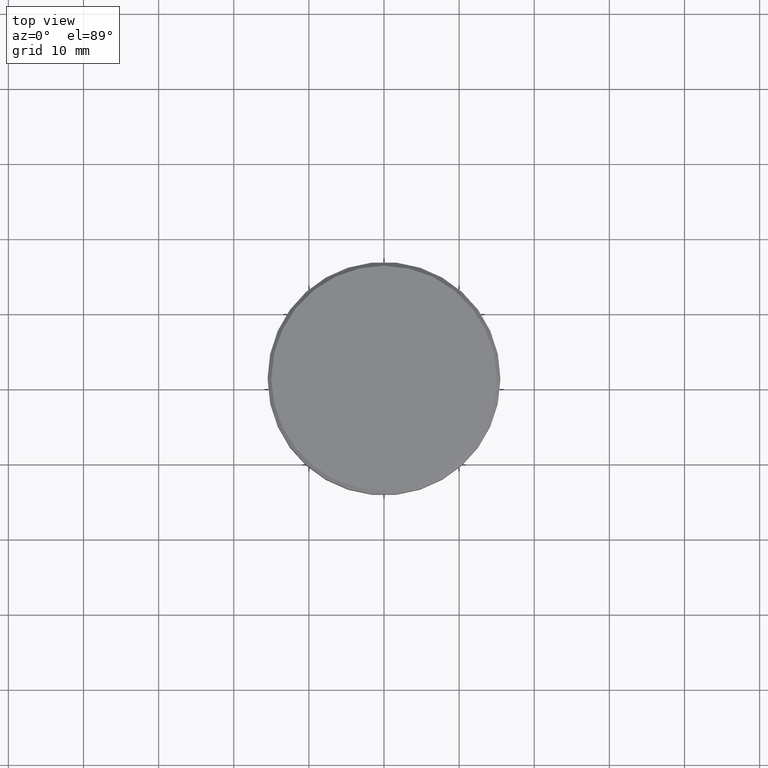
[diagram: clean part render]
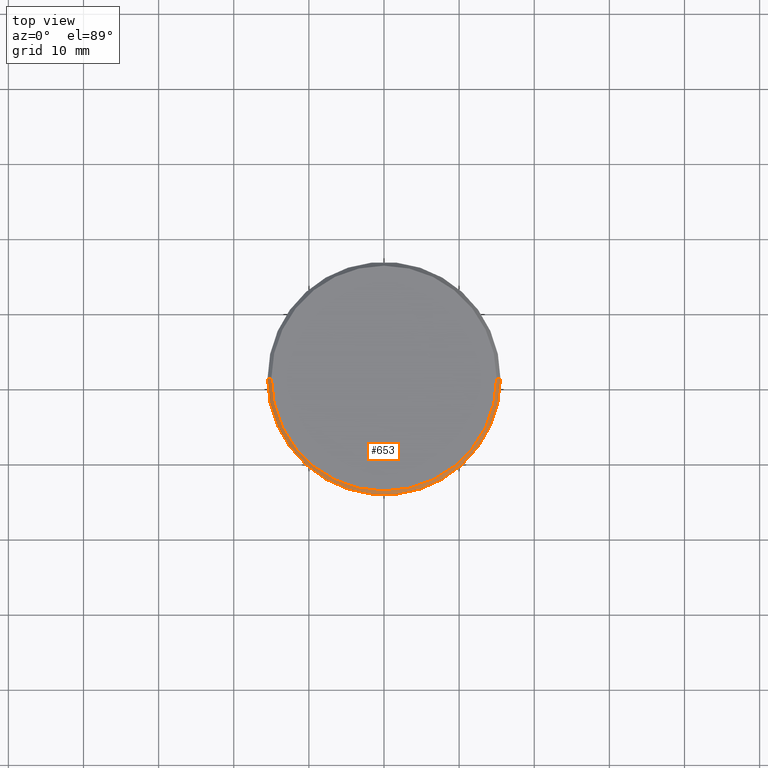
[diagram: same view with one face highlighted and labeled with its STEP entity id]
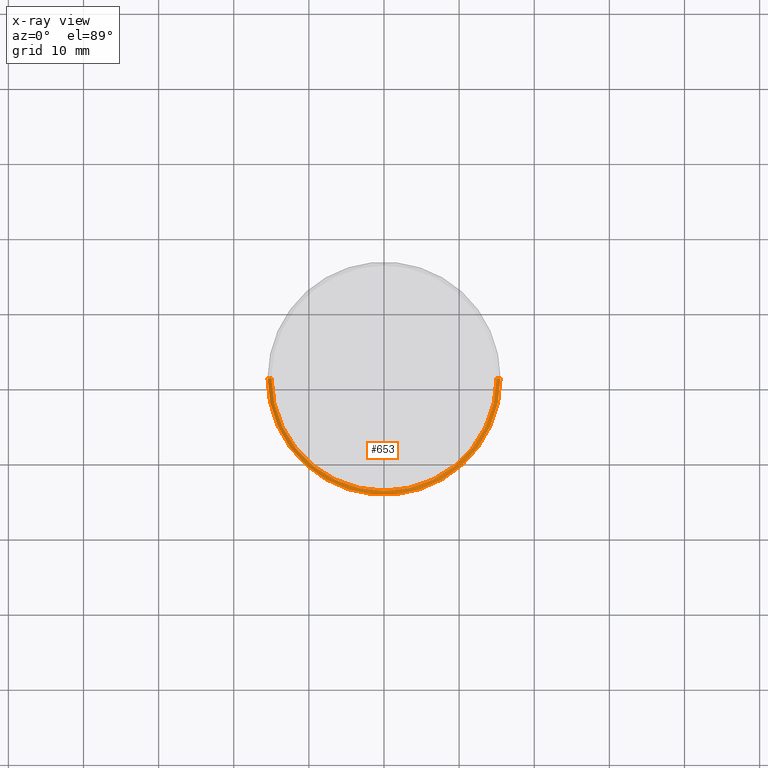
[diagram: x-ray of the same camera — body ghosted, the highlighted face saturated]
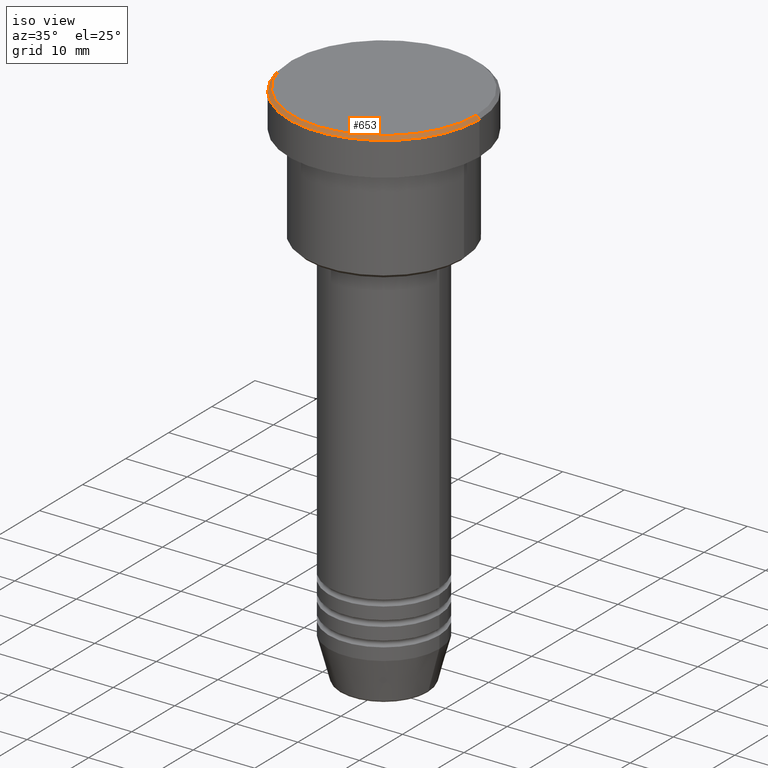
[diagram: same view with one face highlighted and labeled with its STEP entity id]
A machine part, top view. The second image highlights one B-rep face of the part: STEP entity #653.
The next image is the same camera in x-ray: the body ghosted, the highlighted face saturated — about 0% of this face is hidden behind the body in this view.
A second angle (iso view) of the same face is appended — the face is thin or edge-on in the first view.
In plain terms, the highlighted conical surface has half-angle 45 deg.
Its self-contained STEP definition (entity closure, byte-faithful):
#2 = CARTESIAN_POINT ( 'NONE',  ( 0.000000000000000000, 0.000000000000000000, 0.000000000000000000 ) ) ;
#15 = DIRECTION ( 'NONE',  ( -1.000000000000000000, 0.000000000000000000, 0.000000000000000000 ) ) ;
#17 = EDGE_CURVE ( 'NONE', #539, #1008, #609, .T. ) ;
#37 = LINE ( 'NONE', #956, #858 ) ;
#56 = AXIS2_PLACEMENT_3D ( 'NONE', #919, #742, #1109 ) ;
#115 = EDGE_CURVE ( 'NONE', #1008, #516, #145, .T. ) ;
#145 = LINE ( 'NONE', #1036, #372 ) ;
#167 = CONICAL_SURFACE ( 'NONE', #232, 15.00000000000000000, 0.7853981633974500554 ) ;
#169 = ORIENTED_EDGE ( 'NONE', *, *, #1111, .T. ) ;
#177 = CIRCLE ( 'NONE', #680, 15.50000000000000000 ) ;
#222 = EDGE_CURVE ( 'NONE', #516, #690, #177, .T. ) ;
#232 = AXIS2_PLACEMENT_3D ( 'NONE', #2, #813, #15 ) ;
#278 = EDGE_LOOP ( 'NONE', ( #811, #312, #169, #375 ) ) ;
#312 = ORIENTED_EDGE ( 'NONE', *, *, #17, .F. ) ;
#372 = VECTOR ( 'NONE', #580, 1000.000000000000000 ) ;
#375 = ORIENTED_EDGE ( 'NONE', *, *, #222, .F. ) ;
#451 = CARTESIAN_POINT ( 'NONE',  ( 15.50000000000000000, 0.000000000000000000, -0.4999999999999987232 ) ) ;
#501 = DIRECTION ( 'NONE',  ( -0.7071067811865487940, 0.000000000000000000, -0.7071067811865463515 ) ) ;
#516 = VERTEX_POINT ( 'NONE', #451 ) ;
#539 = VERTEX_POINT ( 'NONE', #632 ) ;
#580 = DIRECTION ( 'NONE',  ( 0.7071067811865487940, 8.659560562354950115E-17, -0.7071067811865463515 ) ) ;
#609 = CIRCLE ( 'NONE', #56, 15.00000000000000000 ) ;
#610 = DIRECTION ( 'NONE',  ( 1.000000000000000000, 0.000000000000000000, 0.000000000000000000 ) ) ;
#632 = CARTESIAN_POINT ( 'NONE',  ( -15.00000000000000000, 0.000000000000000000, 0.000000000000000000 ) ) ;
#653 = ADVANCED_FACE ( 'NONE', ( #1131 ), #167, .T. ) ;
#672 = CARTESIAN_POINT ( 'NONE',  ( -15.50000000000000000, 1.898202538678397557E-15, -0.4999999999999987232 ) ) ;
#680 = AXIS2_PLACEMENT_3D ( 'NONE', #973, #1059, #610 ) ;
#690 = VERTEX_POINT ( 'NONE', #672 ) ;
#742 = DIRECTION ( 'NONE',  ( -0.000000000000000000, -0.000000000000000000, 1.000000000000000000 ) ) ;
#811 = ORIENTED_EDGE ( 'NONE', *, *, #115, .F. ) ;
#813 = DIRECTION ( 'NONE',  ( 0.000000000000000000, 0.000000000000000000, -1.000000000000000000 ) ) ;
#858 = VECTOR ( 'NONE', #501, 1000.000000000000000 ) ;
#919 = CARTESIAN_POINT ( 'NONE',  ( 0.000000000000000000, 0.000000000000000000, 0.000000000000000000 ) ) ;
#956 = CARTESIAN_POINT ( 'NONE',  ( -15.00000000000000000, 0.000000000000000000, 0.000000000000000000 ) ) ;
#973 = CARTESIAN_POINT ( 'NONE',  ( 0.000000000000000000, 0.000000000000000000, -0.4999999999999987232 ) ) ;
#1008 = VERTEX_POINT ( 'NONE', #1040 ) ;
#1036 = CARTESIAN_POINT ( 'NONE',  ( 15.00000000000000000, 1.836970198721029589E-15, 0.000000000000000000 ) ) ;
#1040 = CARTESIAN_POINT ( 'NONE',  ( 15.00000000000000000, 1.867586368699713376E-15, 0.000000000000000000 ) ) ;
#1059 = DIRECTION ( 'NONE',  ( 0.000000000000000000, 0.000000000000000000, -1.000000000000000000 ) ) ;
#1109 = DIRECTION ( 'NONE',  ( 1.000000000000000000, 0.000000000000000000, 0.000000000000000000 ) ) ;
#1111 = EDGE_CURVE ( 'NONE', #539, #690, #37, .T. ) ;
#1131 = FACE_OUTER_BOUND ( 'NONE', #278, .T. ) ;